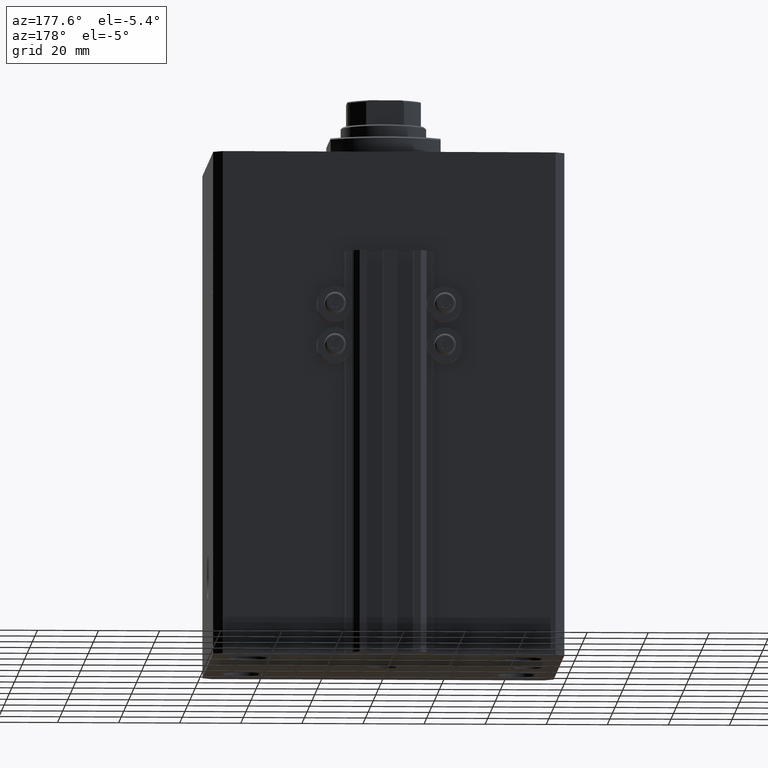
[diagram: clean part render]
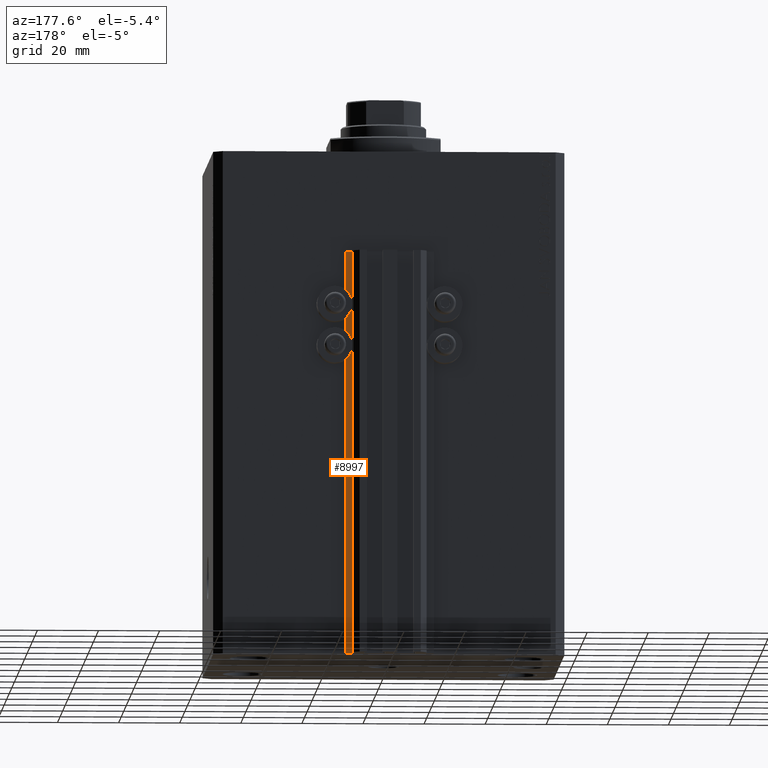
[diagram: same view with one face highlighted and labeled with its STEP entity id]
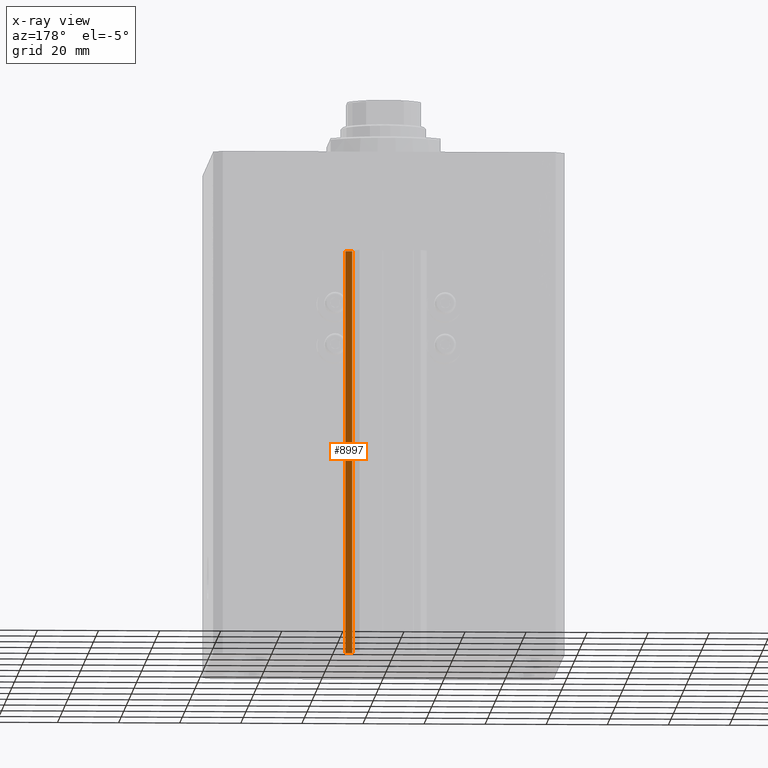
[diagram: x-ray of the same camera — body ghosted, the highlighted face saturated]
A machine part, auxiliary view. The second image highlights one B-rep face of the part: STEP entity #8997.
The next image is the same camera in x-ray: the body ghosted, the highlighted face saturated — about 0% of this face is hidden behind the body in this view.
In plain terms, the highlighted planar face has unit normal (0, 1, 0).
Its self-contained STEP definition (entity closure, byte-faithful):
#414 = EDGE_CURVE ( 'NONE', #9174, #13240, #8135, .T. ) ;
#2067 = VECTOR ( 'NONE', #22497, 1000.000000000000000 ) ;
#2477 = CARTESIAN_POINT ( 'NONE',  ( 12.20000000000000107, 47.50000000000001421, -165.0000000000000000 ) ) ;
#2838 = CARTESIAN_POINT ( 'NONE',  ( 14.49999999999999645, 47.50000000000001421, -165.0000000000000000 ) ) ;
#3133 = FACE_OUTER_BOUND ( 'NONE', #47024, .T. ) ;
#4546 = DIRECTION ( 'NONE',  ( -1.000000000000000000, 0.000000000000000000, 0.000000000000000000 ) ) ;
#4846 = LINE ( 'NONE', #20162, #9806 ) ;
#8135 = LINE ( 'NONE', #37326, #14849 ) ;
#8997 = ADVANCED_FACE ( 'NONE', ( #3133 ), #17730, .T. ) ;
#9074 = AXIS2_PLACEMENT_3D ( 'NONE', #25165, #11722, #11959 ) ;
#9174 = VERTEX_POINT ( 'NONE', #2838 ) ;
#9806 = VECTOR ( 'NONE', #23044, 1000.000000000000000 ) ;
#11066 = ORIENTED_EDGE ( 'NONE', *, *, #414, .T. ) ;
#11722 = DIRECTION ( 'NONE',  ( 0.000000000000000000, 1.000000000000000000, -0.000000000000000000 ) ) ;
#11959 = DIRECTION ( 'NONE',  ( 0.000000000000000000, 0.000000000000000000, 1.000000000000000000 ) ) ;
#13240 = VERTEX_POINT ( 'NONE', #2477 ) ;
#13720 = VERTEX_POINT ( 'NONE', #22438 ) ;
#14611 = EDGE_CURVE ( 'NONE', #13240, #13720, #26110, .T. ) ;
#14849 = VECTOR ( 'NONE', #4546, 1000.000000000000000 ) ;
#17730 = PLANE ( 'NONE',  #9074 ) ;
#19261 = LINE ( 'NONE', #33856, #37606 ) ;
#20162 = CARTESIAN_POINT ( 'NONE',  ( 14.49999999999999645, 47.50000000000001421, -165.0000000000000000 ) ) ;
#21361 = ORIENTED_EDGE ( 'NONE', *, *, #29614, .F. ) ;
#22438 = CARTESIAN_POINT ( 'NONE',  ( 12.20000000000000107, 47.50000000000001421, -33.00000000000000000 ) ) ;
#22497 = DIRECTION ( 'NONE',  ( 0.000000000000000000, 0.000000000000000000, 1.000000000000000000 ) ) ;
#23044 = DIRECTION ( 'NONE',  ( 0.000000000000000000, 0.000000000000000000, 1.000000000000000000 ) ) ;
#25165 = CARTESIAN_POINT ( 'NONE',  ( 14.49999999999999645, 47.50000000000001421, -165.0000000000000000 ) ) ;
#26110 = LINE ( 'NONE', #40682, #2067 ) ;
#29465 = CARTESIAN_POINT ( 'NONE',  ( 14.49999999999999645, 47.50000000000001421, -33.00000000000000000 ) ) ;
#29614 = EDGE_CURVE ( 'NONE', #9174, #39261, #4846, .T. ) ;
#30281 = DIRECTION ( 'NONE',  ( -1.000000000000000000, 0.000000000000000000, 0.000000000000000000 ) ) ;
#33856 = CARTESIAN_POINT ( 'NONE',  ( 14.49999999999999645, 47.50000000000001421, -33.00000000000000000 ) ) ;
#36427 = ORIENTED_EDGE ( 'NONE', *, *, #43787, .F. ) ;
#37326 = CARTESIAN_POINT ( 'NONE',  ( 14.49999999999999645, 47.50000000000001421, -165.0000000000000000 ) ) ;
#37606 = VECTOR ( 'NONE', #30281, 1000.000000000000000 ) ;
#39261 = VERTEX_POINT ( 'NONE', #29465 ) ;
#40359 = ORIENTED_EDGE ( 'NONE', *, *, #14611, .T. ) ;
#40682 = CARTESIAN_POINT ( 'NONE',  ( 12.20000000000000107, 47.50000000000001421, -165.0000000000000000 ) ) ;
#43787 = EDGE_CURVE ( 'NONE', #39261, #13720, #19261, .T. ) ;
#47024 = EDGE_LOOP ( 'NONE', ( #36427, #21361, #11066, #40359 ) ) ;